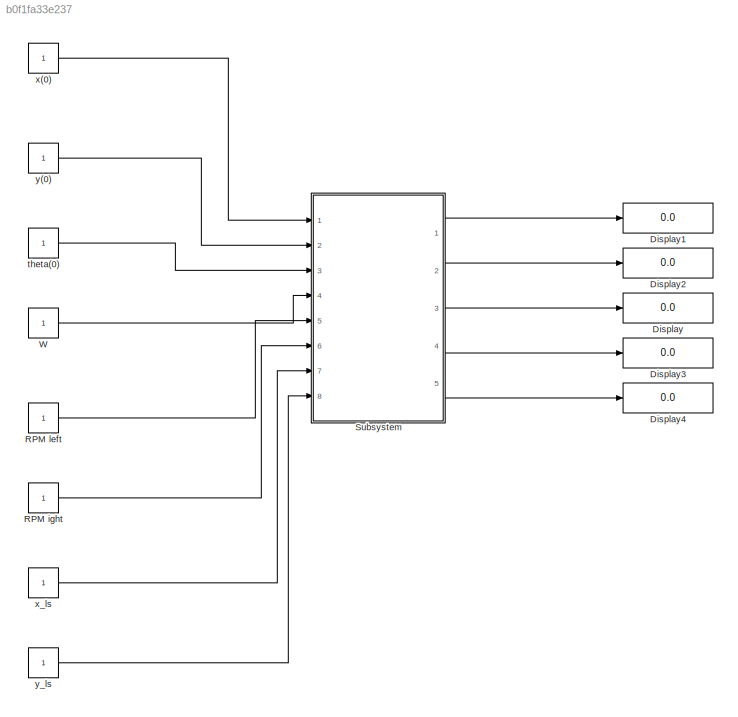
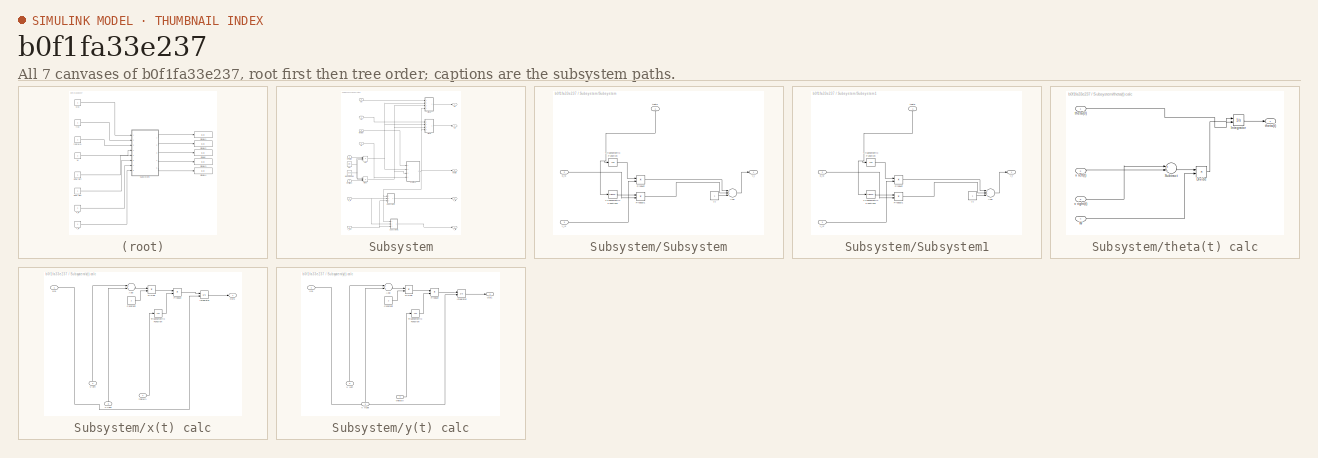
[diagram: thumbnail index - all 7 canvases of the model, root first then tree order]
MODEL slx_b0f1fa33e237
KIND model
BLOCK [Display] Display
  Decimation = 1
  Ports = [1]
BLOCK [Display] Display1
  Decimation = 1
  Ports = [1]
BLOCK [Display] Display2
  Decimation = 1
  Ports = [1]
BLOCK [Display] Display3
  Decimation = 1
  Ports = [1]
BLOCK [Display] Display4
  Decimation = 1
  Ports = [1]
BLOCK [Constant] RPM ight
BLOCK [Constant] RPM left
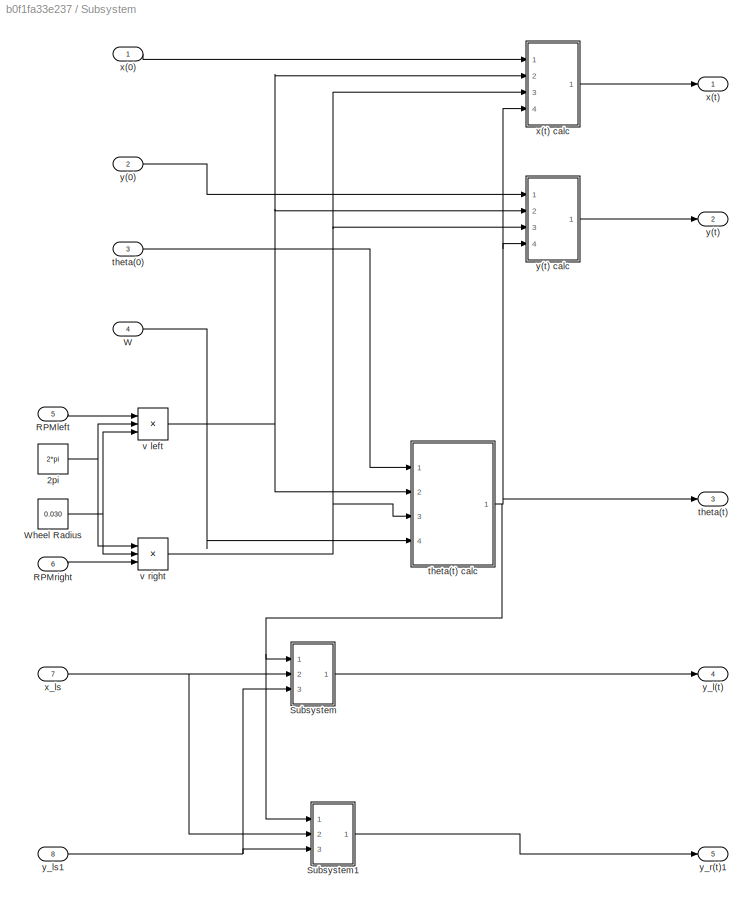
BLOCK [SubSystem] Subsystem
  FunctionWithSeparateData = off
  MaskHideContents = off
  MinAlgLoopOccurrences = off
  Opaque = off
  Ports = [8, 5]
  PropExecContextOutsideSubsystem = off
  RTWSystemCode = Auto
  RequestExecContextInheritance = off
BLOCK [Constant] Subsystem/2pi
  Value = 2*pi
BLOCK [Inport] Subsystem/RPMleft
  IconDisplay = Port number
  Port = 5
BLOCK [Inport] Subsystem/RPMright
  IconDisplay = Port number
  Port = 6
BLOCK [SubSystem] Subsystem/Subsystem
  FunctionWithSeparateData = off
  MaskHideContents = off
  MinAlgLoopOccurrences = off
  Opaque = off
  Ports = [3, 1]
  PropExecContextOutsideSubsystem = off
  RTWSystemCode = Auto
  RequestExecContextInheritance = off
BLOCK [Sum] Subsystem/Subsystem/Add
  InputSameDT = off
  Inputs = +++
  OutDataTypeStr = Inherit: Inherit via internal rule
  Ports = [3, 1]
  SaturateOnIntegerOverflow = off
BLOCK [Product] Subsystem/Subsystem/Product
  InputSameDT = off
  OutDataTypeStr = Inherit: Inherit via internal rule
  Ports = [2, 1]
  RndMeth = Floor
  SaturateOnIntegerOverflow = off
BLOCK [Product] Subsystem/Subsystem/Product1
  InputSameDT = off
  OutDataTypeStr = Inherit: Inherit via internal rule
  Ports = [2, 1]
  RndMeth = Floor
  SaturateOnIntegerOverflow = off
BLOCK [Trigonometry] Subsystem/Subsystem/Trigonometric Function
  Operator = cos
  Ports = [1, 1]
BLOCK [Trigonometry] Subsystem/Subsystem/Trigonometric Function1
  Ports = [1, 1]
BLOCK [Constant] Subsystem/Subsystem/Yr
BLOCK [Inport] Subsystem/Subsystem/theta
  IconDisplay = Port number
BLOCK [Inport] Subsystem/Subsystem/x_ls
  IconDisplay = Port number
  Port = 2
BLOCK [Outport] Subsystem/Subsystem/y_l
  IconDisplay = Port number
BLOCK [Inport] Subsystem/Subsystem/y_ls
  IconDisplay = Port number
  Port = 3
BLOCK [SubSystem] Subsystem/Subsystem1
  FunctionWithSeparateData = off
  MaskHideContents = off
  MinAlgLoopOccurrences = off
  Opaque = off
  Ports = [3, 1]
  PropExecContextOutsideSubsystem = off
  RTWSystemCode = Auto
  RequestExecContextInheritance = off
BLOCK [Sum] Subsystem/Subsystem1/Add
  InputSameDT = off
  Inputs = +-+
  OutDataTypeStr = Inherit: Inherit via internal rule
  Ports = [3, 1]
  SaturateOnIntegerOverflow = off
BLOCK [Product] Subsystem/Subsystem1/Product
  InputSameDT = off
  OutDataTypeStr = Inherit: Inherit via internal rule
  Ports = [2, 1]
  RndMeth = Floor
  SaturateOnIntegerOverflow = off
BLOCK [Product] Subsystem/Subsystem1/Product1
  InputSameDT = off
  OutDataTypeStr = Inherit: Inherit via internal rule
  Ports = [2, 1]
  RndMeth = Floor
  SaturateOnIntegerOverflow = off
BLOCK [Trigonometry] Subsystem/Subsystem1/Trigonometric Function
  Operator = cos
  Ports = [1, 1]
BLOCK [Trigonometry] Subsystem/Subsystem1/Trigonometric Function1
  Ports = [1, 1]
BLOCK [Constant] Subsystem/Subsystem1/Yr
BLOCK [Inport] Subsystem/Subsystem1/theta
  IconDisplay = Port number
BLOCK [Inport] Subsystem/Subsystem1/x_ls
  IconDisplay = Port number
  Port = 2
BLOCK [Inport] Subsystem/Subsystem1/y_ls
  IconDisplay = Port number
  Port = 3
BLOCK [Outport] Subsystem/Subsystem1/y_r
  IconDisplay = Port number
BLOCK [Inport] Subsystem/W
  IconDisplay = Port number
  Port = 4
BLOCK [Constant] Subsystem/Wheel Radius
  Value = 0.030
BLOCK [Inport] Subsystem/theta(0)
  IconDisplay = Port number
  Port = 3
BLOCK [Outport] Subsystem/theta(t)
  IconDisplay = Port number
  Port = 3
BLOCK [SubSystem] Subsystem/theta(t) calc
  FunctionWithSeparateData = off
  MaskHideContents = off
  MinAlgLoopOccurrences = off
  Opaque = off
  Ports = [4, 1]
  PropExecContextOutsideSubsystem = off
  RTWSystemCode = Auto
  RequestExecContextInheritance = off
BLOCK [Product] Subsystem/theta(t) calc/Divide
  InputSameDT = off
  Inputs = */
  OutDataTypeStr = Inherit: Inherit via internal rule
  Ports = [2, 1]
  RndMeth = Floor
  SaturateOnIntegerOverflow = off
BLOCK [Integrator] Subsystem/theta(t) calc/Integrator
  InitialConditionSource = external
  Ports = [2, 1]
BLOCK [Sum] Subsystem/theta(t) calc/Subtract
  InputSameDT = off
  Inputs = +-
  OutDataTypeStr = Inherit: Inherit via internal rule
  Ports = [2, 1]
  SaturateOnIntegerOverflow = off
BLOCK [Inport] Subsystem/theta(t) calc/W
  IconDisplay = Port number
  Port = 4
BLOCK [Inport] Subsystem/theta(t) calc/theta(0)
  IconDisplay = Port number
BLOCK [Outport] Subsystem/theta(t) calc/theta(t)
  IconDisplay = Port number
BLOCK [Inport] Subsystem/theta(t) calc/v left(t)
  IconDisplay = Port number
  Port = 2
BLOCK [Inport] Subsystem/theta(t) calc/v right(t)
  IconDisplay = Port number
  Port = 3
BLOCK [Product] Subsystem/v left
  InputSameDT = off
  Inputs = 3
  OutDataTypeStr = Inherit: Inherit via internal rule
  Ports = [3, 1]
  RndMeth = Floor
  SaturateOnIntegerOverflow = off
BLOCK [Product] Subsystem/v right
  InputSameDT = off
  Inputs = 3
  OutDataTypeStr = Inherit: Inherit via internal rule
  Ports = [3, 1]
  RndMeth = Floor
  SaturateOnIntegerOverflow = off
BLOCK [Inport] Subsystem/x(0)
  IconDisplay = Port number
BLOCK [Outport] Subsystem/x(t)
  IconDisplay = Port number
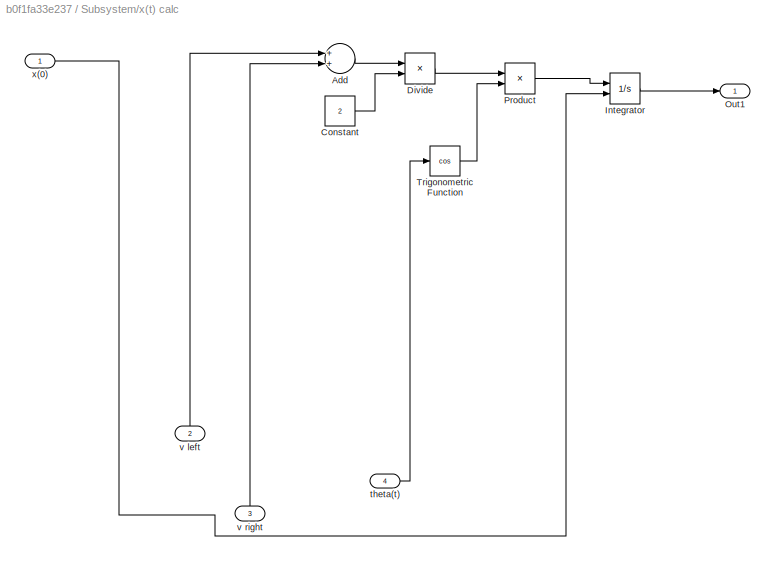
BLOCK [SubSystem] Subsystem/x(t) calc
  FunctionWithSeparateData = off
  MaskHideContents = off
  MinAlgLoopOccurrences = off
  Opaque = off
  Ports = [4, 1]
  PropExecContextOutsideSubsystem = off
  RTWSystemCode = Auto
  RequestExecContextInheritance = off
BLOCK [Sum] Subsystem/x(t) calc/Add
  InputSameDT = off
  OutDataTypeStr = Inherit: Inherit via internal rule
  Ports = [2, 1]
  SaturateOnIntegerOverflow = off
BLOCK [Constant] Subsystem/x(t) calc/Constant
  Value = 2
BLOCK [Product] Subsystem/x(t) calc/Divide
  InputSameDT = off
  Inputs = */
  OutDataTypeStr = Inherit: Inherit via internal rule
  Ports = [2, 1]
  RndMeth = Floor
  SaturateOnIntegerOverflow = off
BLOCK [Integrator] Subsystem/x(t) calc/Integrator
  InitialConditionSource = external
  Ports = [2, 1]
BLOCK [Outport] Subsystem/x(t) calc/Out1
  IconDisplay = Port number
BLOCK [Product] Subsystem/x(t) calc/Product
  InputSameDT = off
  OutDataTypeStr = Inherit: Inherit via internal rule
  Ports = [2, 1]
  RndMeth = Floor
  SaturateOnIntegerOverflow = off
BLOCK [Trigonometry] Subsystem/x(t) calc/Trigonometric Function
  Operator = cos
  Ports = [1, 1]
BLOCK [Inport] Subsystem/x(t) calc/theta(t)
  IconDisplay = Port number
  Port = 4
BLOCK [Inport] Subsystem/x(t) calc/v left
  IconDisplay = Port number
  Port = 2
BLOCK [Inport] Subsystem/x(t) calc/v right
  IconDisplay = Port number
  Port = 3
BLOCK [Inport] Subsystem/x(t) calc/x(0)
  IconDisplay = Port number
BLOCK [Inport] Subsystem/x_ls
  IconDisplay = Port number
  Port = 7
BLOCK [Inport] Subsystem/y(0)
  IconDisplay = Port number
  Port = 2
BLOCK [Outport] Subsystem/y(t)
  IconDisplay = Port number
  Port = 2
BLOCK [SubSystem] Subsystem/y(t) calc
  FunctionWithSeparateData = off
  MaskHideContents = off
  MinAlgLoopOccurrences = off
  Opaque = off
  Ports = [4, 1]
  PropExecContextOutsideSubsystem = off
  RTWSystemCode = Auto
  RequestExecContextInheritance = off
BLOCK [Sum] Subsystem/y(t) calc/Add
  InputSameDT = off
  OutDataTypeStr = Inherit: Inherit via internal rule
  Ports = [2, 1]
  SaturateOnIntegerOverflow = off
BLOCK [Constant] Subsystem/y(t) calc/Constant
  Value = 2
BLOCK [Product] Subsystem/y(t) calc/Divide
  InputSameDT = off
  Inputs = */
  OutDataTypeStr = Inherit: Inherit via internal rule
  Ports = [2, 1]
  RndMeth = Floor
  SaturateOnIntegerOverflow = off
BLOCK [Integrator] Subsystem/y(t) calc/Integrator
  InitialConditionSource = external
  Ports = [2, 1]
BLOCK [Outport] Subsystem/y(t) calc/Out1
  IconDisplay = Port number
BLOCK [Product] Subsystem/y(t) calc/Product
  InputSameDT = off
  OutDataTypeStr = Inherit: Inherit via internal rule
  Ports = [2, 1]
  RndMeth = Floor
  SaturateOnIntegerOverflow = off
BLOCK [Trigonometry] Subsystem/y(t) calc/Trigonometric Function
  Operator = cos
  Ports = [1, 1]
BLOCK [Inport] Subsystem/y(t) calc/V left
  IconDisplay = Port number
  Port = 2
BLOCK [Inport] Subsystem/y(t) calc/V right
  IconDisplay = Port number
  Port = 3
BLOCK [Inport] Subsystem/y(t) calc/theta(t)
  IconDisplay = Port number
  Port = 4
BLOCK [Inport] Subsystem/y(t) calc/y(0)
  IconDisplay = Port number
BLOCK [Outport] Subsystem/y_l(t)
  IconDisplay = Port number
  Port = 4
BLOCK [Inport] Subsystem/y_ls1
  IconDisplay = Port number
  Port = 8
BLOCK [Outport] Subsystem/y_r(t)1
  IconDisplay = Port number
  Port = 5
BLOCK [Constant] W
BLOCK [Constant] theta(0)
BLOCK [Constant] x(0)
BLOCK [Constant] x_ls
BLOCK [Constant] y(0)
BLOCK [Constant] y_ls
LINE RPM ight:1 -> Subsystem:6
LINE RPM left:1 -> Subsystem:5
NET Subsystem/2pi:1 -> Subsystem/v left:2, Subsystem/v right:1
LINE Subsystem/RPMleft:1 -> Subsystem/v left:1
LINE Subsystem/RPMright:1 -> Subsystem/v right:3
LINE Subsystem/Subsystem/Add:1 -> Subsystem/Subsystem/y_l:1
LINE Subsystem/Subsystem/Product1:1 -> Subsystem/Subsystem/Add:2
LINE Subsystem/Subsystem/Product:1 -> Subsystem/Subsystem/Add:1
LINE Subsystem/Subsystem/Trigonometric Function1:1 -> Subsystem/Subsystem/Product1:1
LINE Subsystem/Subsystem/Trigonometric Function:1 -> Subsystem/Subsystem/Product:1
LINE Subsystem/Subsystem/Yr:1 -> Subsystem/Subsystem/Add:3
NET Subsystem/Subsystem/theta:1 -> Subsystem/Subsystem/Trigonometric Function1:1, Subsystem/Subsystem/Trigonometric Function:1
LINE Subsystem/Subsystem/x_ls:1 -> Subsystem/Subsystem/Product1:2
LINE Subsystem/Subsystem/y_ls:1 -> Subsystem/Subsystem/Product:2
LINE Subsystem/Subsystem1/Add:1 -> Subsystem/Subsystem1/y_r:1
LINE Subsystem/Subsystem1/Product1:1 -> Subsystem/Subsystem1/Add:2
LINE Subsystem/Subsystem1/Product:1 -> Subsystem/Subsystem1/Add:1
LINE Subsystem/Subsystem1/Trigonometric Function1:1 -> Subsystem/Subsystem1/Product1:1
LINE Subsystem/Subsystem1/Trigonometric Function:1 -> Subsystem/Subsystem1/Product:1
LINE Subsystem/Subsystem1/Yr:1 -> Subsystem/Subsystem1/Add:3
NET Subsystem/Subsystem1/theta:1 -> Subsystem/Subsystem1/Trigonometric Function1:1, Subsystem/Subsystem1/Trigonometric Function:1
LINE Subsystem/Subsystem1/x_ls:1 -> Subsystem/Subsystem1/Product1:2
LINE Subsystem/Subsystem1/y_ls:1 -> Subsystem/Subsystem1/Product:2
LINE Subsystem/Subsystem1:1 -> Subsystem/y_r(t)1:1
LINE Subsystem/Subsystem:1 -> Subsystem/y_l(t):1
LINE Subsystem/W:1 -> Subsystem/theta(t) calc:4
NET Subsystem/Wheel Radius:1 -> Subsystem/v left:3, Subsystem/v right:2
LINE Subsystem/theta(0):1 -> Subsystem/theta(t) calc:1
LINE Subsystem/theta(t) calc/Divide:1 -> Subsystem/theta(t) calc/Integrator:1
LINE Subsystem/theta(t) calc/Integrator:1 -> Subsystem/theta(t) calc/theta(t):1
LINE Subsystem/theta(t) calc/Subtract:1 -> Subsystem/theta(t) calc/Divide:1
LINE Subsystem/theta(t) calc/W:1 -> Subsystem/theta(t) calc/Divide:2
LINE Subsystem/theta(t) calc/theta(0):1 -> Subsystem/theta(t) calc/Integrator:2
LINE Subsystem/theta(t) calc/v left(t):1 -> Subsystem/theta(t) calc/Subtract:2
LINE Subsystem/theta(t) calc/v right(t):1 -> Subsystem/theta(t) calc/Subtract:1
NET Subsystem/theta(t) calc:1 -> Subsystem/Subsystem1:1, Subsystem/Subsystem:1, Subsystem/theta(t):1, Subsystem/x(t) calc:4, Subsystem/y(t) calc:4
NET Subsystem/v left:1 -> Subsystem/theta(t) calc:2, Subsystem/x(t) calc:2, Subsystem/y(t) calc:2
NET Subsystem/v right:1 -> Subsystem/theta(t) calc:3, Subsystem/x(t) calc:3, Subsystem/y(t) calc:3
LINE Subsystem/x(0):1 -> Subsystem/x(t) calc:1
LINE Subsystem/x(t) calc/Add:1 -> Subsystem/x(t) calc/Divide:1
LINE Subsystem/x(t) calc/Constant:1 -> Subsystem/x(t) calc/Divide:2
LINE Subsystem/x(t) calc/Divide:1 -> Subsystem/x(t) calc/Product:1
LINE Subsystem/x(t) calc/Integrator:1 -> Subsystem/x(t) calc/Out1:1
LINE Subsystem/x(t) calc/Product:1 -> Subsystem/x(t) calc/Integrator:1
LINE Subsystem/x(t) calc/Trigonometric Function:1 -> Subsystem/x(t) calc/Product:2
LINE Subsystem/x(t) calc/theta(t):1 -> Subsystem/x(t) calc/Trigonometric Function:1
LINE Subsystem/x(t) calc/v left:1 -> Subsystem/x(t) calc/Add:1
LINE Subsystem/x(t) calc/v right:1 -> Subsystem/x(t) calc/Add:2
LINE Subsystem/x(t) calc/x(0):1 -> Subsystem/x(t) calc/Integrator:2
LINE Subsystem/x(t) calc:1 -> Subsystem/x(t):1
NET Subsystem/x_ls:1 -> Subsystem/Subsystem1:2, Subsystem/Subsystem:2
LINE Subsystem/y(0):1 -> Subsystem/y(t) calc:1
LINE Subsystem/y(t) calc/Add:1 -> Subsystem/y(t) calc/Divide:1
LINE Subsystem/y(t) calc/Constant:1 -> Subsystem/y(t) calc/Divide:2
LINE Subsystem/y(t) calc/Divide:1 -> Subsystem/y(t) calc/Product:1
LINE Subsystem/y(t) calc/Integrator:1 -> Subsystem/y(t) calc/Out1:1
LINE Subsystem/y(t) calc/Product:1 -> Subsystem/y(t) calc/Integrator:1
LINE Subsystem/y(t) calc/Trigonometric Function:1 -> Subsystem/y(t) calc/Product:2
LINE Subsystem/y(t) calc/V left:1 -> Subsystem/y(t) calc/Add:1
LINE Subsystem/y(t) calc/V right:1 -> Subsystem/y(t) calc/Add:2
LINE Subsystem/y(t) calc/theta(t):1 -> Subsystem/y(t) calc/Trigonometric Function:1
LINE Subsystem/y(t) calc/y(0):1 -> Subsystem/y(t) calc/Integrator:2
LINE Subsystem/y(t) calc:1 -> Subsystem/y(t):1
NET Subsystem/y_ls1:1 -> Subsystem/Subsystem1:3, Subsystem/Subsystem:3
LINE Subsystem:1 -> Display1:1
LINE Subsystem:2 -> Display2:1
LINE Subsystem:3 -> Display:1
LINE Subsystem:4 -> Display3:1
LINE Subsystem:5 -> Display4:1
LINE W:1 -> Subsystem:4
LINE theta(0):1 -> Subsystem:3
LINE x(0):1 -> Subsystem:1
LINE x_ls:1 -> Subsystem:7
LINE y(0):1 -> Subsystem:2
LINE y_ls:1 -> Subsystem:8
note: NET lines group one-source signal fan-out (src -> all destinations, sorted); 1:1 wires keep LINE
